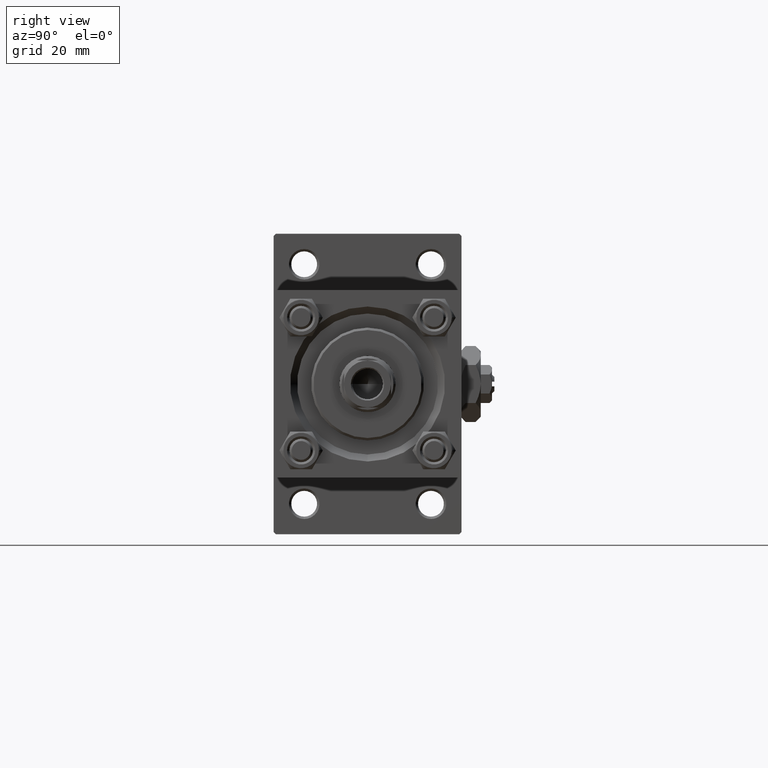
[diagram: clean part render]
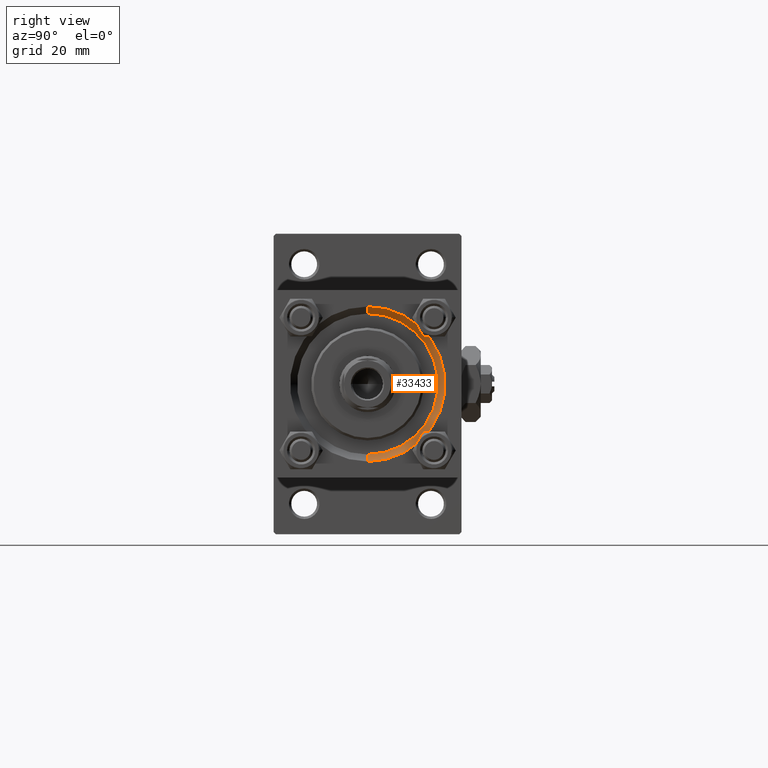
[diagram: same view with one face highlighted and labeled with its STEP entity id]
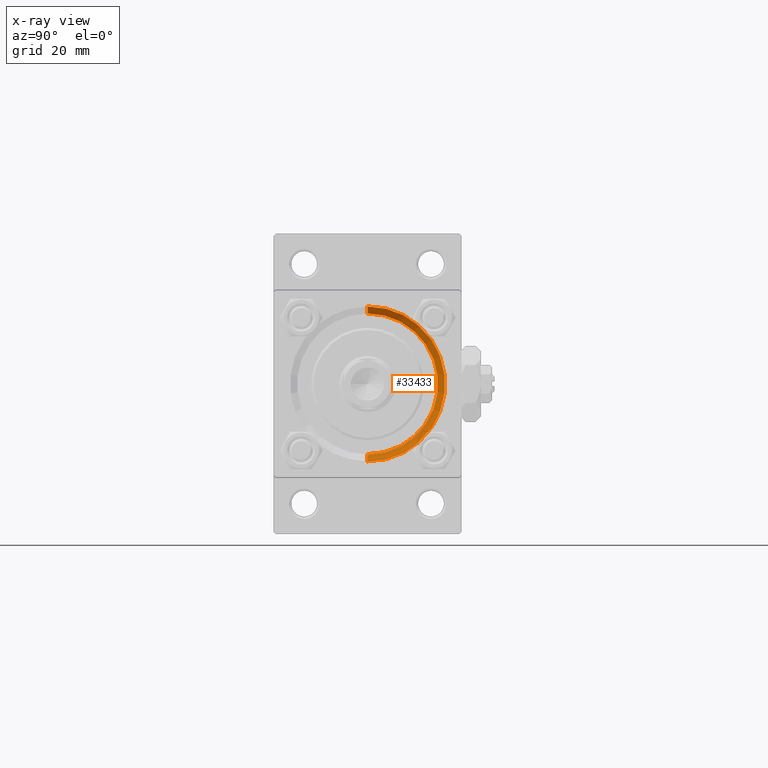
[diagram: x-ray of the same camera — body ghosted, the highlighted face saturated]
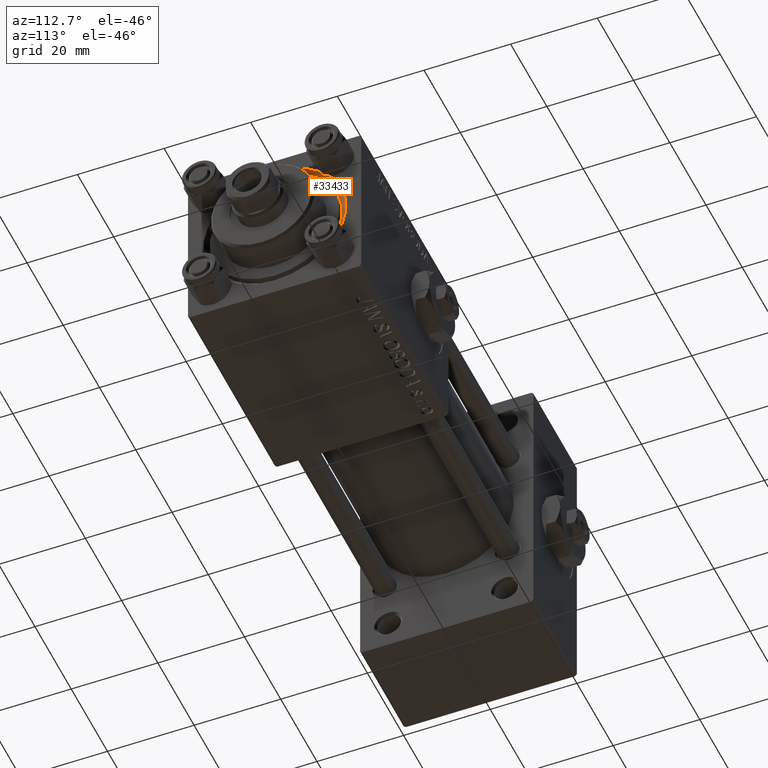
[diagram: same view with one face highlighted and labeled with its STEP entity id]
A machine part, right view. The second image highlights one B-rep face of the part: STEP entity #33433.
The next image is the same camera in x-ray: the body ghosted, the highlighted face saturated — about 0% of this face is hidden behind the body in this view.
A second angle (auxiliary view) of the same face is appended — the face is thin or edge-on in the first view.
In plain terms, the highlighted conical surface has half-angle 45 deg.
Its self-contained STEP definition (entity closure, byte-faithful):
#817 = FACE_OUTER_BOUND ( 'NONE', #12630, .T. ) ;
#5529 = CARTESIAN_POINT ( 'NONE',  ( 119.0000000000000142, 0.000000000000000000, -16.49999999999998579 ) ) ;
#5865 = CONICAL_SURFACE ( 'NONE', #48626, 15.00000000000000000, 0.7853981633974437271 ) ;
#6377 = DIRECTION ( 'NONE',  ( -1.000000000000000000, -0.000000000000000000, -0.000000000000000000 ) ) ;
#6582 = CARTESIAN_POINT ( 'NONE',  ( 117.5000000000000142, 1.836970198721029589E-15, 15.00000000000000000 ) ) ;
#8651 = ORIENTED_EDGE ( 'NONE', *, *, #26355, .F. ) ;
#8974 = DIRECTION ( 'NONE',  ( 0.000000000000000000, 0.000000000000000000, -1.000000000000000000 ) ) ;
#9691 = ORIENTED_EDGE ( 'NONE', *, *, #33236, .F. ) ;
#11871 = ORIENTED_EDGE ( 'NONE', *, *, #38362, .F. ) ;
#12466 = AXIS2_PLACEMENT_3D ( 'NONE', #38895, #6377, #31028 ) ;
#12630 = EDGE_LOOP ( 'NONE', ( #11871, #9691, #38334, #8651 ) ) ;
#18919 = DIRECTION ( 'NONE',  ( 0.7071067811865507924, 8.659560562354892183E-17, 0.7071067811865441310 ) ) ;
#19996 = DIRECTION ( 'NONE',  ( 1.000000000000000000, 0.000000000000000000, 0.000000000000000000 ) ) ;
#21792 = AXIS2_PLACEMENT_3D ( 'NONE', #47329, #34722, #27609 ) ;
#22487 = DIRECTION ( 'NONE',  ( 0.7071067811865507924, 0.000000000000000000, -0.7071067811865441310 ) ) ;
#23751 = CARTESIAN_POINT ( 'NONE',  ( 117.5000000000000142, 1.836970198721029589E-15, 15.00000000000000000 ) ) ;
#25147 = CARTESIAN_POINT ( 'NONE',  ( 117.5000000000000142, 0.000000000000000000, -15.00000000000000000 ) ) ;
#26355 = EDGE_CURVE ( 'NONE', #47073, #27357, #50167, .T. ) ;
#27357 = VERTEX_POINT ( 'NONE', #5529 ) ;
#27609 = DIRECTION ( 'NONE',  ( 0.000000000000000000, 0.000000000000000000, 1.000000000000000000 ) ) ;
#28643 = CARTESIAN_POINT ( 'NONE',  ( 117.5000000000000142, 0.000000000000000000, 0.000000000000000000 ) ) ;
#30462 = LINE ( 'NONE', #6582, #42931 ) ;
#30629 = CARTESIAN_POINT ( 'NONE',  ( 117.5000000000000142, 0.000000000000000000, -15.00000000000000000 ) ) ;
#31028 = DIRECTION ( 'NONE',  ( 0.000000000000000000, 0.000000000000000000, 1.000000000000000000 ) ) ;
#32996 = VERTEX_POINT ( 'NONE', #23751 ) ;
#33173 = CARTESIAN_POINT ( 'NONE',  ( 119.0000000000000142, 2.020667218593131128E-15, 16.49999999999998579 ) ) ;
#33236 = EDGE_CURVE ( 'NONE', #44723, #32996, #46951, .T. ) ;
#33433 = ADVANCED_FACE ( 'NONE', ( #817 ), #5865, .F. ) ;
#34722 = DIRECTION ( 'NONE',  ( 1.000000000000000000, 0.000000000000000000, 0.000000000000000000 ) ) ;
#38334 = ORIENTED_EDGE ( 'NONE', *, *, #49587, .T. ) ;
#38362 = EDGE_CURVE ( 'NONE', #32996, #47073, #30462, .T. ) ;
#38895 = CARTESIAN_POINT ( 'NONE',  ( 119.0000000000000142, 0.000000000000000000, 0.000000000000000000 ) ) ;
#42931 = VECTOR ( 'NONE', #18919, 1000.000000000000114 ) ;
#42960 = LINE ( 'NONE', #30629, #44033 ) ;
#44033 = VECTOR ( 'NONE', #22487, 1000.000000000000114 ) ;
#44723 = VERTEX_POINT ( 'NONE', #25147 ) ;
#46951 = CIRCLE ( 'NONE', #21792, 15.00000000000000000 ) ;
#47073 = VERTEX_POINT ( 'NONE', #33173 ) ;
#47329 = CARTESIAN_POINT ( 'NONE',  ( 117.5000000000000142, 0.000000000000000000, 0.000000000000000000 ) ) ;
#48626 = AXIS2_PLACEMENT_3D ( 'NONE', #28643, #19996, #8974 ) ;
#49587 = EDGE_CURVE ( 'NONE', #44723, #27357, #42960, .T. ) ;
#50167 = CIRCLE ( 'NONE', #12466, 16.49999999999998579 ) ;